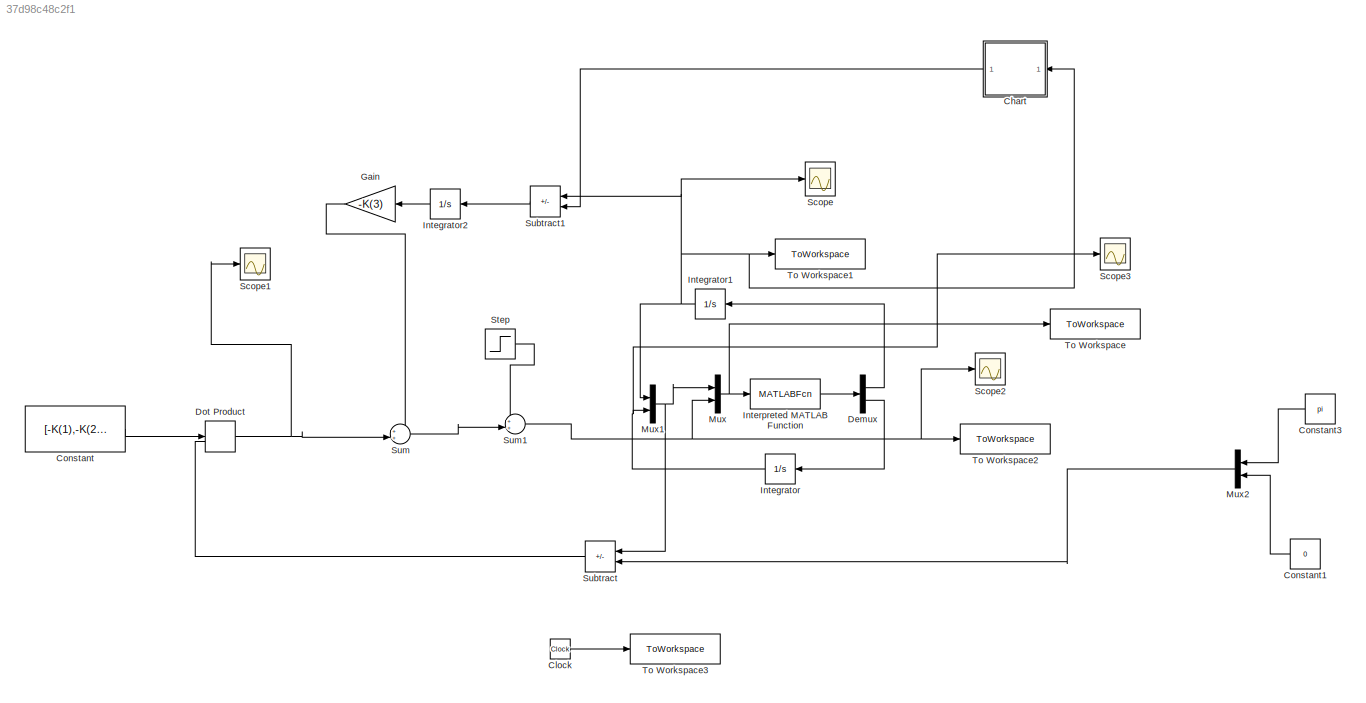
MODEL slx_37d98c48c2f1
KIND model
CONFIG AbsTol = auto
CONFIG EnableMultiTasking = off
CONFIG FixedStep = auto
CONFIG MaxStep = auto
CONFIG MinStep = auto
CONFIG RelTol = 1e-3
CONFIG SampleTimeConstraint = Unconstrained
CONFIG SolverName = VariableStepAuto
CONFIG StartTime = 0.0
CONFIG StopTime = 100
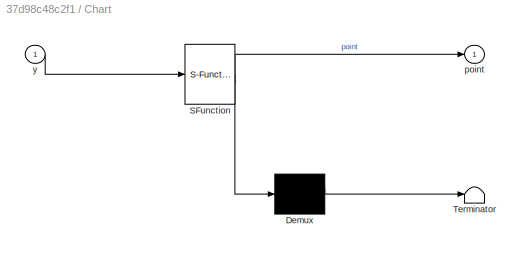
BLOCK [SubSystem] Chart
  ErrorFcn = Stateflow.Translate.translate
  NameLocation = top
  PermitHierarchicalResolution = ExplicitOnly
  SFBlockType = Chart
  TreatAsAtomicUnit = on
BLOCK [Demux] Chart/ Demux 
  Outputs = 1
BLOCK [S-Function] Chart/ SFunction 
  EnableBusSupport = on
  FunctionName = sf_sfun
  PortCounts = [1 2]
  SFcnIsStateOwnerBlock = off
  SFunctionDeploymentMode = off
  Tag = Stateflow S-Function 3
BLOCK [Terminator] Chart/ Terminator 
BLOCK [Outport] Chart/point
BLOCK [Inport] Chart/y
BLOCK [Clock] Clock
BLOCK [Constant] Constant
  Value = [-K(1),-K(2)]
BLOCK [Constant] Constant1
  NameLocation = top
  Value = 0
BLOCK [Constant] Constant3
  NameLocation = top
  Value = pi
BLOCK [Demux] Demux
  Outputs = 2
BLOCK [DotProduct] Dot Product
  OutDataTypeStr = Inherit: Inherit via internal rule
BLOCK [Gain] Gain
  Gain = -K(3)
  NameLocation = top
BLOCK [Integrator] Integrator
  NameLocation = top
BLOCK [Integrator] Integrator1
  NameLocation = top
BLOCK [Integrator] Integrator2
  NameLocation = top
BLOCK [MATLABFcn] Interpreted MATLAB Function
  MATLABFcn = function_WP1
  OutputDimensions = 2
BLOCK [Mux] Mux
  DisplayOption = bar
  Inputs = 2
BLOCK [Mux] Mux1
  DisplayOption = bar
  Inputs = 2
BLOCK [Mux] Mux2
  DisplayOption = bar
  Inputs = 2
  NameLocation = top
BLOCK [Scope] Scope
  Floating = off
  NumInputPorts = 1
  ScopeSpecificationString = Simulink.scopes.TimeScopeBlockCfg('CurrentConfiguration', extmgr.ConfigurationSet(extmgr.Configuration('Core','General UI',true),extmgr.Configuration('Core','Source UI',true),extmgr.Configuration('Sources','WiredSimulink',true,'DataLoggingVariableName','ScopeData1'),extmgr.Configuration('Visuals','Time Domain',true,'SerializedDisplays',{struct('MinYLimReal','-1.96398','MaxYLimReal','17.67578','YLa...<+1458ch>
BLOCK [Scope] Scope1
  Floating = off
  NumInputPorts = 1
  ScopeSpecificationString = Simulink.scopes.TimeScopeBlockCfg('CurrentConfiguration', extmgr.ConfigurationSet(extmgr.Configuration('Core','General UI',true),extmgr.Configuration('Core','Source UI',true),extmgr.Configuration('Sources','WiredSimulink',true),extmgr.Configuration('Visuals','Time Domain',true,'SerializedDisplays',{struct('MinYLimReal','-16.92834','MaxYLimReal','151.69809','YLabelReal','','MinYLimMag','0.00000','M...<+1341ch>
BLOCK [Scope] Scope2
  Floating = off
  NumInputPorts = 1
  ScopeSpecificationString = Simulink.scopes.TimeScopeBlockCfg('CurrentConfiguration', extmgr.ConfigurationSet(extmgr.Configuration('Core','General UI',true),extmgr.Configuration('Core','Source UI',true),extmgr.Configuration('Sources','WiredSimulink',true,'DataLoggingVariableName','ScopeData2'),extmgr.Configuration('Visuals','Time Domain',true,'SerializedDisplays',{struct('MinYLimReal','-601.78223','MaxYLimReal','413.44569','...<+1463ch>
BLOCK [Scope] Scope3
  Floating = off
  NumInputPorts = 1
  ScopeSpecificationString = Simulink.scopes.TimeScopeBlockCfg('CurrentConfiguration', extmgr.ConfigurationSet(extmgr.Configuration('Core','General UI',true),extmgr.Configuration('Core','Source UI',true),extmgr.Configuration('Sources','WiredSimulink',true,'DataLoggingVariableName','ScopeData1'),extmgr.Configuration('Visuals','Time Domain',true,'SerializedDisplays',{struct('MinYLimReal','-2.86069','MaxYLimReal','23.19093','YLa...<+1459ch>
BLOCK [Step] Step
  After = +1000
  SampleTime = 0
  Time = 5
BLOCK [Sum] Subtract
  IconShape = rectangular
  Inputs = +-
  NameLocation = top
BLOCK [Sum] Subtract1
  IconShape = rectangular
  Inputs = +-
  NameLocation = top
BLOCK [Sum] Sum
  Inputs = ++|
BLOCK [Sum] Sum1
  Inputs = ++|
BLOCK [ToWorkspace] To Workspace
  FixptAsFi = on
  MaxDataPoints = inf
  SampleTime = -1
  VariableName = x
BLOCK [ToWorkspace] To Workspace1
  FixptAsFi = on
  MaxDataPoints = inf
  SampleTime = -1
  VariableName = y
BLOCK [ToWorkspace] To Workspace2
  FixptAsFi = on
  MaxDataPoints = inf
  SampleTime = -1
  VariableName = u
BLOCK [ToWorkspace] To Workspace3
  FixptAsFi = on
  MaxDataPoints = inf
  SampleTime = -1
  VariableName = t
LINE Chart:1 -> Subtract1:2
LINE Clock:1 -> To Workspace3:1
LINE Constant1:1 -> Mux2:2
LINE Constant3:1 -> Mux2:1
LINE Constant:1 -> Dot Product:1
LINE Demux:1 -> Integrator1:1
LINE Demux:2 -> Integrator:1
NET Dot Product:1 -> Scope1:1, Sum:2
LINE Gain:1 -> Sum:1
NET Integrator1:1 -> Chart:1, Mux1:1, Scope:1, Subtract1:1, To Workspace1:1
LINE Integrator2:1 -> Gain:1
NET Integrator:1 -> Mux1:2, Scope3:1
LINE Interpreted MATLAB Function:1 -> Demux:1
NET Mux1:1 -> Mux:1, Subtract:1
LINE Mux2:1 -> Subtract:2
NET Mux:1 -> Interpreted MATLAB Function:1, To Workspace:1
LINE Step:1 -> Sum1:1
LINE Subtract1:1 -> Integrator2:1
LINE Subtract:1 -> Dot Product:2
NET Sum1:1 -> Mux:2, Scope2:1, To Workspace2:1
LINE Sum:1 -> Sum1:2
note: NET lines group one-source signal fan-out (src -> all destinations, sorted); 1:1 wires keep LINE
CHART Chart states=2 transitions=3
  STATE_LABEL 'Normal_situation\nen:\npoint=fix(y/(pi))*pi+pi*sign(y)\na=(point/pi)+1\nb=(point/pi)-1\n'
  STATE_LABEL 'initial\nen:\na=2\nb=0'
CHART  states=0 transitions=0
